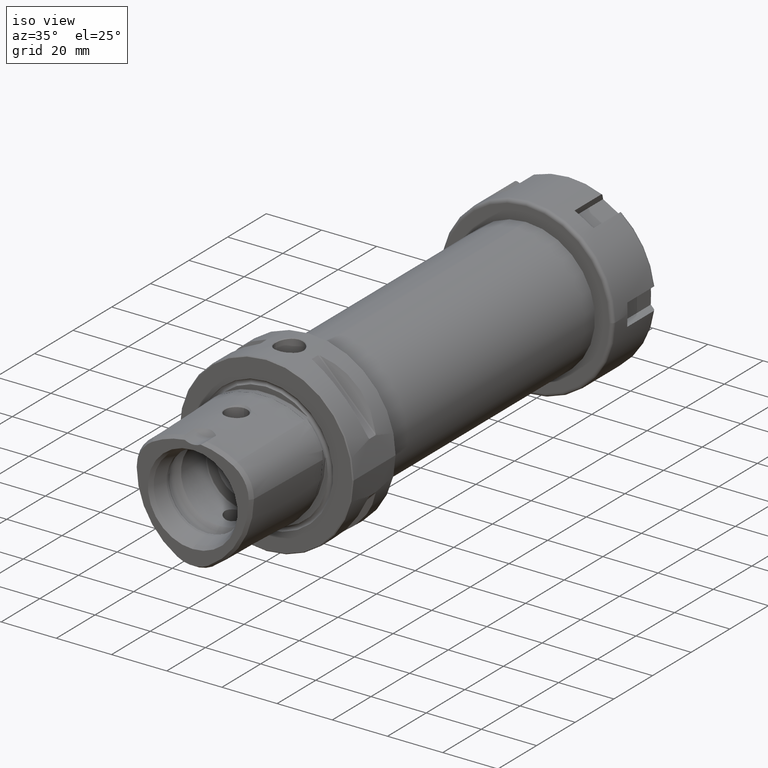
[diagram: clean part render]
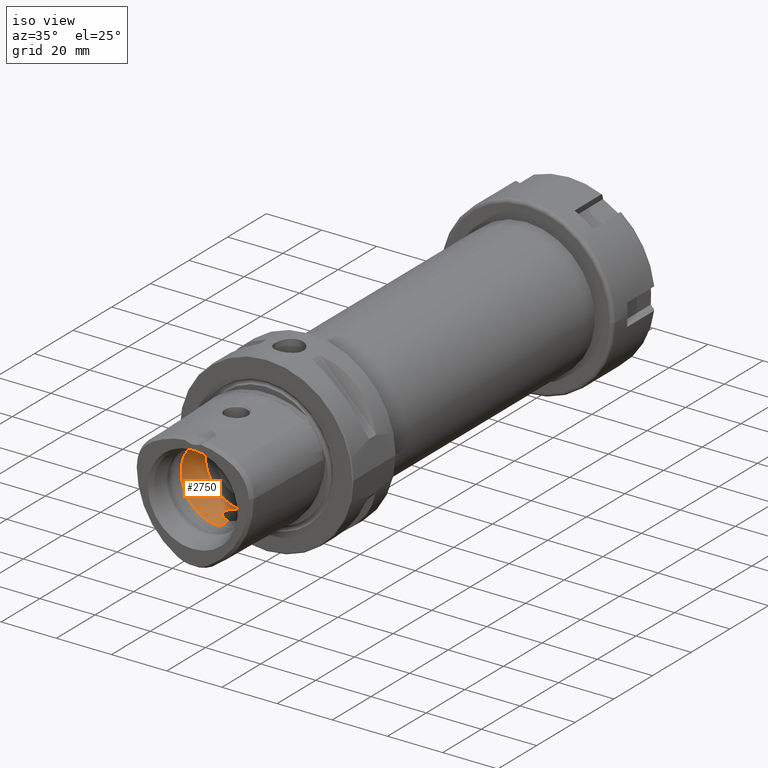
[diagram: same view with one face highlighted and labeled with its STEP entity id]
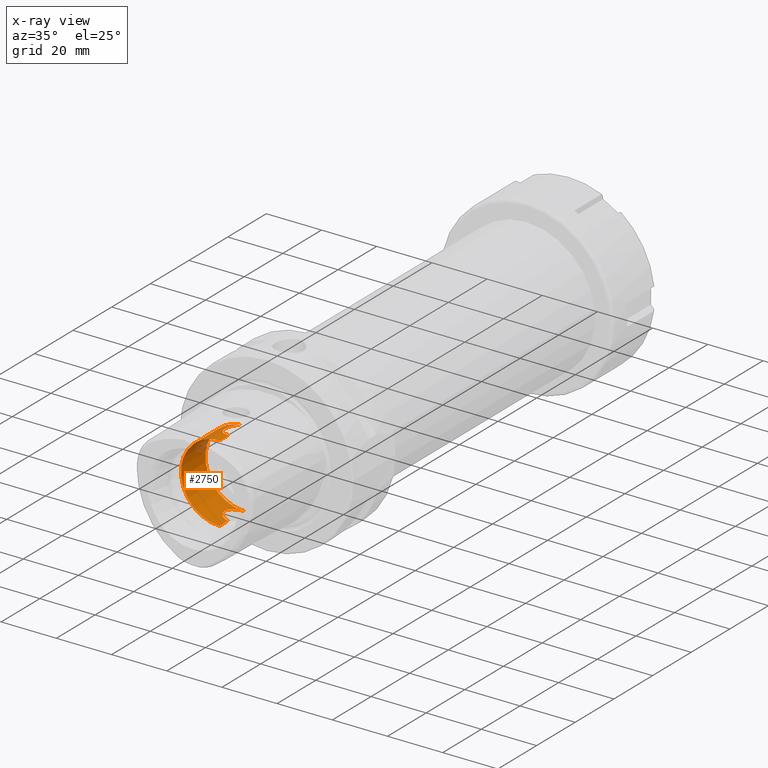
[diagram: x-ray of the same camera — body ghosted, the highlighted face saturated]
A machine part, iso view. The second image highlights one B-rep face of the part: STEP entity #2750.
The next image is the same camera in x-ray: the body ghosted, the highlighted face saturated — about 6% of this face is hidden behind the body in this view.
In plain terms, the highlighted cylindrical surface (partial cylindrical patch) has radius 14.0125 mm, axis along (0, -1, 0).
Its self-contained STEP definition (entity closure, byte-faithful):
#868=DIRECTION('',(0.E0,-1.E0,0.E0));
#869=VECTOR('',#868,4.525376459842E0);
#870=CARTESIAN_POINT('',(0.E0,-1.955E1,-1.40125E1));
#871=LINE('',#870,#869);
#872=DIRECTION('',(4.640528239452E-10,-1.E0,0.E0));
#873=VECTOR('',#872,5.000000000001E-2);
#874=CARTESIAN_POINT('',(-2.320264119726E-11,-1.14E1,-1.40125E1));
#875=LINE('',#874,#873);
#881=DIRECTION('',(-4.641506345936E-10,-1.E0,-7.105427357600E-14));
#882=VECTOR('',#881,5.000000000001E-2);
#883=CARTESIAN_POINT('',(2.320708208936E-11,-1.14E1,1.40125E1));
#884=LINE('',#883,#882);
#885=DIRECTION('',(0.E0,-1.E0,0.E0));
#886=VECTOR('',#885,4.525376459842E0);
#887=CARTESIAN_POINT('',(0.E0,-1.955E1,1.40125E1));
#888=LINE('',#887,#886);
#915=CARTESIAN_POINT('',(0.E0,-2.407537645984E1,0.E0));
#916=DIRECTION('',(0.E0,-1.E0,0.E0));
#917=DIRECTION('',(0.E0,0.E0,1.E0));
#918=AXIS2_PLACEMENT_3D('',#915,#916,#917);
#920=CARTESIAN_POINT('',(0.E0,-1.14E1,0.E0));
#921=DIRECTION('',(0.E0,-1.E0,0.E0));
#922=DIRECTION('',(0.E0,0.E0,1.E0));
#923=AXIS2_PLACEMENT_3D('',#920,#921,#922);
#935=CARTESIAN_POINT('',(0.E0,-1.955E1,1.40125E1));
#936=CARTESIAN_POINT('',(-2.840012231870E-1,-1.955E1,1.40125E1));
#937=CARTESIAN_POINT('',(-8.509281440854E-1,-1.948993891541E1,
1.399497316007E1));
#938=CARTESIAN_POINT('',(-1.659948612169E0,-1.922665839727E1,1.392118610190E1));
#939=CARTESIAN_POINT('',(-2.396268325277E0,-1.880111680287E1,1.381191695689E1));
#940=CARTESIAN_POINT('',(-3.023276698901E0,-1.823879189776E1,1.368657003126E1));
#941=CARTESIAN_POINT('',(-3.526496419009E0,-1.755071939764E1,1.356387058356E1));
#942=CARTESIAN_POINT('',(-3.874588423318E0,-1.677832444147E1,1.346706184564E1));
#943=CARTESIAN_POINT('',(-4.057244649089E0,-1.593248870608E1,1.341231614301E1));
#944=CARTESIAN_POINT('',(-4.058356679892E0,-1.507850312478E1,1.341197337895E1));
#945=CARTESIAN_POINT('',(-3.878235450261E0,-1.423279588120E1,1.346599457423E1));
#946=CARTESIAN_POINT('',(-3.531980602326E0,-1.345848119609E1,1.356243104300E1));
#947=CARTESIAN_POINT('',(-3.029048896053E0,-1.276734012908E1,1.368529907141E1));
#948=CARTESIAN_POINT('',(-2.401312457890E0,-1.220237157496E1,1.381105823170E1));
#949=CARTESIAN_POINT('',(-1.663821572693E0,-1.177492286324E1,1.392075092753E1));
#950=CARTESIAN_POINT('',(-8.531027998291E-1,-1.151037705172E1,
1.399488008178E1));
#951=CARTESIAN_POINT('',(-2.847413754738E-1,-1.145E1,1.40125E1));
#952=CARTESIAN_POINT('',(0.E0,-1.145E1,1.40125E1));
#959=CARTESIAN_POINT('',(0.E0,-1.145E1,-1.40125E1));
#960=CARTESIAN_POINT('',(-2.844974429175E-1,-1.145E1,-1.40125E1));
#961=CARTESIAN_POINT('',(-8.523767619609E-1,-1.151027414760E1,
-1.399491046402E1));
#962=CARTESIAN_POINT('',(-1.662476174666E0,-1.177437495360E1,
-1.392090173012E1));
#963=CARTESIAN_POINT('',(-2.399556238006E0,-1.220115553226E1,
-1.381135766148E1));
#964=CARTESIAN_POINT('',(-3.027065933205E0,-1.276522228054E1,
-1.368573662312E1));
#965=CARTESIAN_POINT('',(-3.530115958885E0,-1.345536134477E1,
-1.356291993693E1));
#966=CARTESIAN_POINT('',(-3.876842977551E0,-1.422868008337E1,
-1.346640034326E1));
#967=CARTESIAN_POINT('',(-4.057790449480E0,-1.507358856533E1,
-1.341214756646E1));
#968=CARTESIAN_POINT('',(-4.057782198484E0,-1.592652649125E1,
-1.341214993946E1));
#969=CARTESIAN_POINT('',(-3.876781066344E0,-1.677156565609E1,
-1.346641923171E1));
#970=CARTESIAN_POINT('',(-3.529862688162E0,-1.754509668761E1,
-1.356298747161E1));
#971=CARTESIAN_POINT('',(-3.026695355402E0,-1.823519381479E1,
-1.368582093384E1));
#972=CARTESIAN_POINT('',(-2.399055255172E0,-1.879919938920E1,
-1.381144413764E1));
#973=CARTESIAN_POINT('',(-1.662156443689E0,-1.922574742343E1,
-1.392093608901E1));
#974=CARTESIAN_POINT('',(-8.522057115433E-1,-1.948975185305E1,
-1.399491791124E1));
#975=CARTESIAN_POINT('',(-2.844431964701E-1,-1.955E1,-1.40125E1));
#976=CARTESIAN_POINT('',(0.E0,-1.955E1,-1.40125E1));
#1838=VERTEX_POINT('',#935);
#1839=VERTEX_POINT('',#952);
#1840=VERTEX_POINT('',#959);
#1841=VERTEX_POINT('',#976);
#1988=CARTESIAN_POINT('',(0.E0,-2.407537645984E1,1.40125E1));
#1989=CARTESIAN_POINT('',(0.E0,-2.407537645984E1,-1.40125E1));
#1990=VERTEX_POINT('',#1988);
#1991=VERTEX_POINT('',#1989);
#2036=CARTESIAN_POINT('',(0.E0,-1.14E1,-1.40125E1));
#2037=CARTESIAN_POINT('',(0.E0,-1.14E1,1.40125E1));
#2038=VERTEX_POINT('',#2036);
#2039=VERTEX_POINT('',#2037);
#2732=CARTESIAN_POINT('',(0.E0,-9.65E0,0.E0));
#2733=DIRECTION('',(0.E0,-1.E0,0.E0));
#2734=DIRECTION('',(0.E0,0.E0,1.E0));
#2735=AXIS2_PLACEMENT_3D('',#2732,#2733,#2734);
#2736=CYLINDRICAL_SURFACE('',#2735,1.40125E1);
#2737=ORIENTED_EDGE('',*,*,#2723,.F.);
#2738=ORIENTED_EDGE('',*,*,#2682,.F.);
#2740=ORIENTED_EDGE('',*,*,#2739,.T.);
#2741=ORIENTED_EDGE('',*,*,#2679,.F.);
#2743=ORIENTED_EDGE('',*,*,#2742,.T.);
#2744=ORIENTED_EDGE('',*,*,#2675,.T.);
#2746=ORIENTED_EDGE('',*,*,#2745,.T.);
#2747=ORIENTED_EDGE('',*,*,#2672,.T.);
#2748=EDGE_LOOP('',(#2737,#2738,#2740,#2741,#2743,#2744,#2746,#2747));
#2749=FACE_OUTER_BOUND('',#2748,.F.);
#2750=ADVANCED_FACE('',(#2749),#2736,.F.);
#919=CIRCLE('',#918,1.40125E1);
#924=CIRCLE('',#923,1.40125E1);
#953=B_SPLINE_CURVE_WITH_KNOTS('',3,(#935,#936,#937,#938,#939,#940,#941,#942,
#943,#944,#945,#946,#947,#948,#949,#950,#951,#952),.UNSPECIFIED.,.F.,.F.,(4,1,1,
1,1,1,1,1,1,1,1,1,1,1,1,4),(0.E0,6.666666666667E-2,1.333333333333E-1,2.E-1,
2.666666666667E-1,3.333333333333E-1,4.E-1,4.666666666667E-1,5.333333333333E-1,
6.E-1,6.666666666667E-1,7.333333333333E-1,8.E-1,8.666666666667E-1,
9.333333333333E-1,1.E0),.UNSPECIFIED.);
#977=B_SPLINE_CURVE_WITH_KNOTS('',3,(#959,#960,#961,#962,#963,#964,#965,#966,
#967,#968,#969,#970,#971,#972,#973,#974,#975,#976),.UNSPECIFIED.,.F.,.F.,(4,1,1,
1,1,1,1,1,1,1,1,1,1,1,1,4),(0.E0,6.666666666667E-2,1.333333333333E-1,2.E-1,
2.666666666667E-1,3.333333333333E-1,4.E-1,4.666666666667E-1,5.333333333333E-1,
6.E-1,6.666666666667E-1,7.333333333333E-1,8.E-1,8.666666666667E-1,
9.333333333333E-1,1.E0),.UNSPECIFIED.);
#2672=EDGE_CURVE('',#1841,#1991,#871,.T.);
#2675=EDGE_CURVE('',#2038,#1840,#875,.T.);
#2679=EDGE_CURVE('',#2039,#1839,#884,.T.);
#2682=EDGE_CURVE('',#1838,#1990,#888,.T.);
#2723=EDGE_CURVE('',#1990,#1991,#919,.T.);
#2739=EDGE_CURVE('',#1838,#1839,#953,.T.);
#2742=EDGE_CURVE('',#2039,#2038,#924,.T.);
#2745=EDGE_CURVE('',#1840,#1841,#977,.T.);